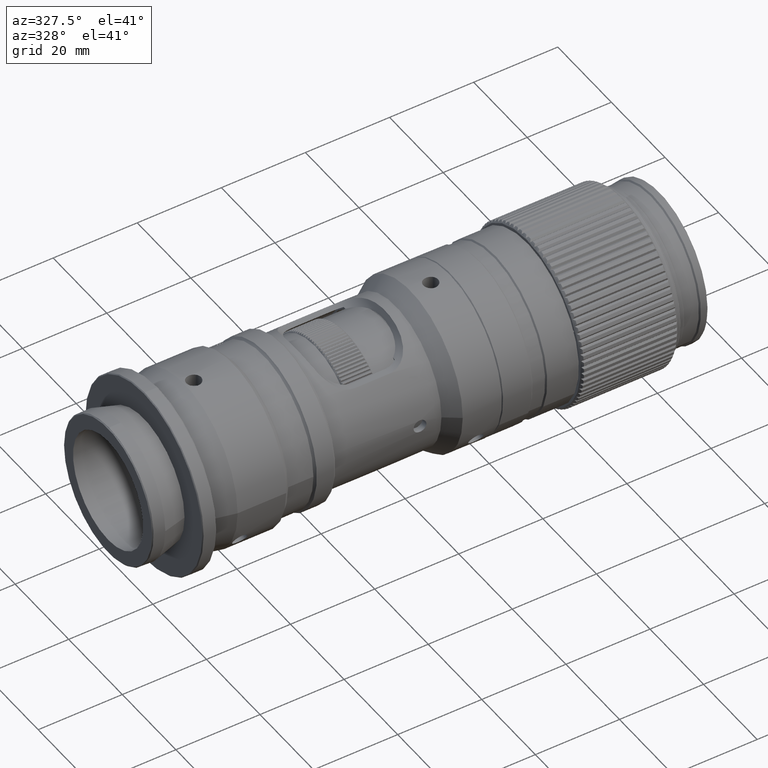
[diagram: clean part render]
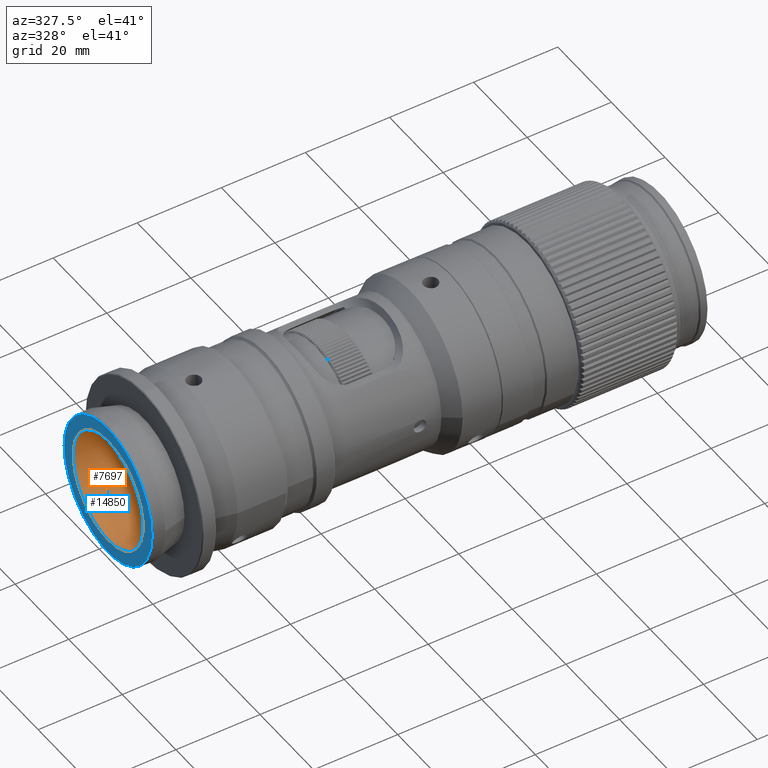
[diagram: same view with the hole feature highlighted: cylindrical wall and planar end face, labeled with their STEP entity ids]
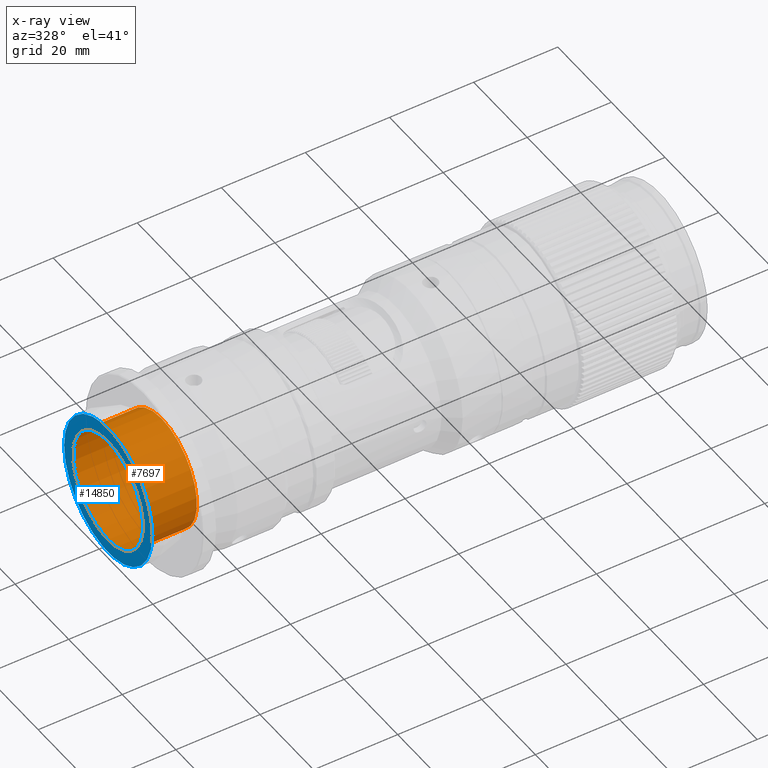
[diagram: x-ray of the same camera — body ghosted, the hole faces saturated]
A machine part, auxiliary view. The highlighted faces form one hole feature of diameter 26.2 mm: the cylindrical wall (entity #7697, orange) and its adjacent planar end face (entity #14850, blue) — they share a circular edge in the B-rep.
The next image is the same camera in x-ray (body ghosted, the hole faces saturated) — the bore reads through the body.
Wall:
#168 = CYLINDRICAL_SURFACE ( 'NONE', #24810, 13.10000000000036913 ) ;
#285 = CARTESIAN_POINT ( 'NONE',  ( 6.018126531709010685, 26.11023935412960739, 28.81905592086989643 ) ) ;
#676 = CARTESIAN_POINT ( 'NONE',  ( 6.018126531709010685, 26.11023935412960739, 15.71905592086952907 ) ) ;
#5068 = CIRCLE ( 'NONE', #12305, 13.10000000000036913 ) ;
#5258 = CARTESIAN_POINT ( 'NONE',  ( -14.93010650653081406, 26.11023935412960739, 15.71905592086952907 ) ) ;
#6462 = DIRECTION ( 'NONE',  ( 0.000000000000000000, 0.000000000000000000, 1.000000000000000000 ) ) ;
#7697 = ADVANCED_FACE ( 'NONE', ( #10511, #7903 ), #168, .F. ) ;
#7903 = FACE_OUTER_BOUND ( 'NONE', #11431, .T. ) ;
#10292 = ORIENTED_EDGE ( 'NONE', *, *, #29066, .F. ) ;
#10511 = FACE_OUTER_BOUND ( 'NONE', #16672, .T. ) ;
#11431 = EDGE_LOOP ( 'NONE', ( #19205 ) ) ;
#12305 = AXIS2_PLACEMENT_3D ( 'NONE', #18665, #28995, #34410 ) ;
#16056 = VERTEX_POINT ( 'NONE', #285 ) ;
#16672 = EDGE_LOOP ( 'NONE', ( #10292 ) ) ;
#17358 = AXIS2_PLACEMENT_3D ( 'NONE', #676, #22220, #6462 ) ;
#17485 = CARTESIAN_POINT ( 'NONE',  ( -6.741867947838264818, 26.11023935412960739, 28.81905592086989643 ) ) ;
#18665 = CARTESIAN_POINT ( 'NONE',  ( -6.741867947838264818, 26.11023935412960739, 15.71905592086952907 ) ) ;
#19205 = ORIENTED_EDGE ( 'NONE', *, *, #19838, .T. ) ;
#19838 = EDGE_CURVE ( 'NONE', #25200, #25200, #5068, .T. ) ;
#20692 = DIRECTION ( 'NONE',  ( -1.000000000000000000, -0.000000000000000000, -0.000000000000000000 ) ) ;
#21835 = CIRCLE ( 'NONE', #17358, 13.10000000000036913 ) ;
#22220 = DIRECTION ( 'NONE',  ( -1.000000000000000000, -0.000000000000000000, -0.000000000000000000 ) ) ;
#24810 = AXIS2_PLACEMENT_3D ( 'NONE', #5258, #20692, #29260 ) ;
#25200 = VERTEX_POINT ( 'NONE', #17485 ) ;
#28995 = DIRECTION ( 'NONE',  ( -1.000000000000000000, -0.000000000000000000, -0.000000000000000000 ) ) ;
#29066 = EDGE_CURVE ( 'NONE', #16056, #16056, #21835, .T. ) ;
#29260 = DIRECTION ( 'NONE',  ( 0.000000000000000000, 0.000000000000000000, 1.000000000000000000 ) ) ;
#34410 = DIRECTION ( 'NONE',  ( 0.000000000000000000, 0.000000000000000000, 1.000000000000000000 ) ) ;
End face:
#872 = DIRECTION ( 'NONE',  ( 1.000000000000000000, 0.000000000000000000, 0.000000000000000000 ) ) ;
#3514 = FACE_BOUND ( 'NONE', #29976, .T. ) ;
#4386 = ORIENTED_EDGE ( 'NONE', *, *, #28621, .F. ) ;
#5068 = CIRCLE ( 'NONE', #12305, 13.10000000000036913 ) ;
#5854 = CARTESIAN_POINT ( 'NONE',  ( -6.741867947838264818, 26.11023935412960739, 15.71905592086952907 ) ) ;
#10630 = VERTEX_POINT ( 'NONE', #13769 ) ;
#11175 = AXIS2_PLACEMENT_3D ( 'NONE', #5854, #27572, #22132 ) ;
#12305 = AXIS2_PLACEMENT_3D ( 'NONE', #18665, #28995, #34410 ) ;
#13769 = CARTESIAN_POINT ( 'NONE',  ( -6.741867947838264818, 42.56024575869004423, 15.71905592086952907 ) ) ;
#13966 = CIRCLE ( 'NONE', #11175, 16.45000640456043683 ) ;
#14191 = PLANE ( 'NONE',  #28237 ) ;
#14850 = ADVANCED_FACE ( 'NONE', ( #27528, #3514 ), #14191, .F. ) ;
#16145 = ORIENTED_EDGE ( 'NONE', *, *, #19838, .F. ) ;
#17485 = CARTESIAN_POINT ( 'NONE',  ( -6.741867947838264818, 26.11023935412960739, 28.81905592086989643 ) ) ;
#18665 = CARTESIAN_POINT ( 'NONE',  ( -6.741867947838264818, 26.11023935412960739, 15.71905592086952907 ) ) ;
#19838 = EDGE_CURVE ( 'NONE', #25200, #25200, #5068, .T. ) ;
#22132 = DIRECTION ( 'NONE',  ( 0.000000000000000000, 1.000000000000000000, 0.000000000000000000 ) ) ;
#22435 = CARTESIAN_POINT ( 'NONE',  ( -6.741867947838264818, 26.11023935412960739, 15.71905592086952907 ) ) ;
#25200 = VERTEX_POINT ( 'NONE', #17485 ) ;
#25312 = EDGE_LOOP ( 'NONE', ( #4386 ) ) ;
#27528 = FACE_OUTER_BOUND ( 'NONE', #25312, .T. ) ;
#27572 = DIRECTION ( 'NONE',  ( 1.000000000000000000, 8.139655949591051312E-19, -0.000000000000000000 ) ) ;
#28237 = AXIS2_PLACEMENT_3D ( 'NONE', #22435, #872, #32301 ) ;
#28621 = EDGE_CURVE ( 'NONE', #10630, #10630, #13966, .T. ) ;
#28995 = DIRECTION ( 'NONE',  ( -1.000000000000000000, -0.000000000000000000, -0.000000000000000000 ) ) ;
#29976 = EDGE_LOOP ( 'NONE', ( #16145 ) ) ;
#32301 = DIRECTION ( 'NONE',  ( 0.000000000000000000, 0.000000000000000000, -1.000000000000000000 ) ) ;
#34410 = DIRECTION ( 'NONE',  ( 0.000000000000000000, 0.000000000000000000, 1.000000000000000000 ) ) ;